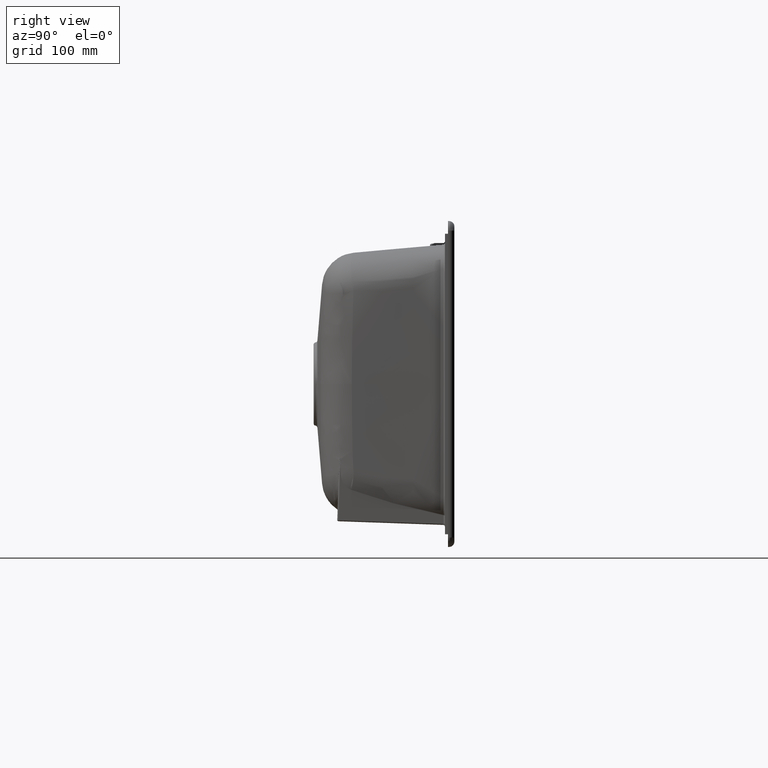
[diagram: clean part render]
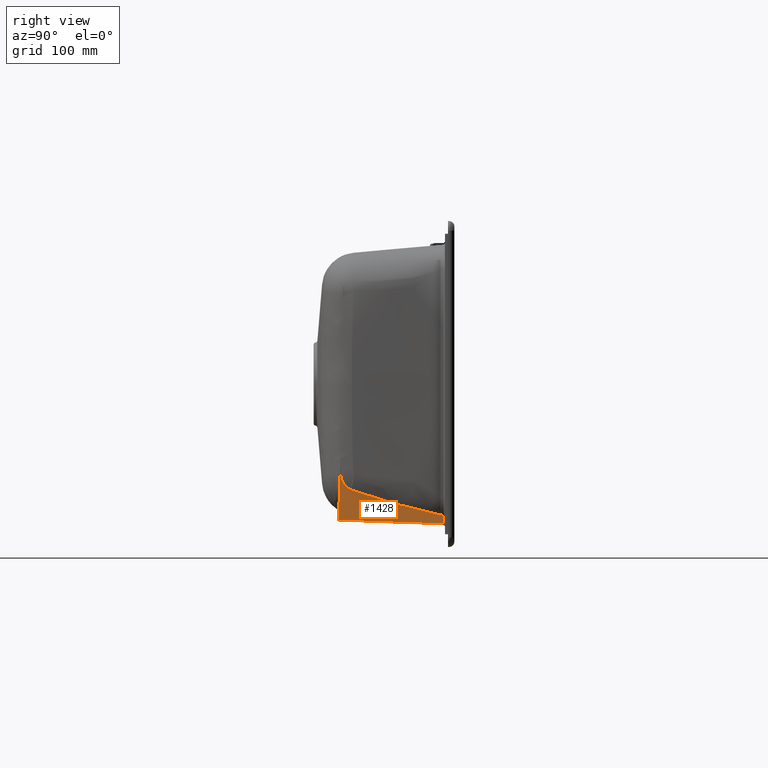
[diagram: same view with one face highlighted and labeled with its STEP entity id]
A machine part, right view. The second image highlights one B-rep face of the part: STEP entity #1428.
In plain terms, the highlighted planar face has unit normal (0.9999, -0.0143, 0.0005).
Its self-contained STEP definition (entity closure, byte-faithful):
#204=PLANE('',#7419);
#348=LINE('',#40869,#570);
#364=LINE('',#44094,#586);
#365=LINE('',#44096,#587);
#570=VECTOR('',#8125,1.);
#586=VECTOR('',#8275,1.);
#587=VECTOR('',#8276,1.);
#1428=ADVANCED_FACE('',(#1967),#204,.T.);
#1967=FACE_OUTER_BOUND('',#2440,.T.);
#2440=EDGE_LOOP('',(#4296,#4297,#4298,#4299,#4300));
#2894=B_SPLINE_CURVE_WITH_KNOTS('',3,(#40658,#40659,#40660,#40661,#40662,
#40663,#40664,#40665,#40666,#40667,#40668,#40669,#40670,#40671,#40672,#40673,
#40674,#40675,#40676,#40677,#40678,#40679,#40680,#40681,#40682,#40683,#40684,
#40685,#40686,#40687,#40688),.UNSPECIFIED.,.F.,.F.,(4,1,1,2,2,1,2,2,1,2,
2,1,2,2,1,1,2,2,4),(0.,0.0625000000000003,0.0937500000000003,0.109375,0.125,
0.187500000000001,0.218750000000001,0.250000000000001,0.312500000000001,
0.343750000000001,0.375000000000001,0.437500000000001,0.468750000000001,
0.500000000000001,0.625000000000001,0.687500000000001,0.718750000000001,
0.750000000000001,1.),.UNSPECIFIED.);
#2897=B_SPLINE_CURVE_WITH_KNOTS('',3,(#40733,#40734,#40735,#40736,#40737,
#40738,#40739,#40740,#40741,#40742,#40743,#40744,#40745,#40746,#40747,#40748,
#40749,#40750,#40751,#40752,#40753,#40754,#40755,#40756,#40757,#40758,#40759,
#40760,#40761,#40762,#40763,#40764),.UNSPECIFIED.,.F.,.F.,(4,2,2,1,1,2,
2,1,1,2,2,1,1,2,2,1,1,2,2,4),(0.,0.250000000000073,0.500000000000145,0.562500000000163,
0.593750000000173,0.609375000000176,0.62500000000018,0.656250000000186,
0.671875000000189,0.67968750000019,0.687500000000192,0.703125000000194,
0.710937500000194,0.714843750000195,0.718750000000195,0.734375000000181,
0.742187500000175,0.746093750000172,0.75000000000017,1.),.UNSPECIFIED.);
#4296=ORIENTED_EDGE('',*,*,#6596,.F.);
#4297=ORIENTED_EDGE('',*,*,#6597,.F.);
#4298=ORIENTED_EDGE('',*,*,#6469,.T.);
#4299=ORIENTED_EDGE('',*,*,#6473,.T.);
#4300=ORIENTED_EDGE('',*,*,#6475,.T.);
#5364=VERTEX_POINT('',#8863);
#5666=VERTEX_POINT('',#40689);
#5667=VERTEX_POINT('',#40690);
#5670=VERTEX_POINT('',#40870);
#5737=VERTEX_POINT('',#44095);
#6469=EDGE_CURVE('',#5666,#5667,#2894,.T.);
#6473=EDGE_CURVE('',#5667,#5364,#2897,.T.);
#6475=EDGE_CURVE('',#5364,#5670,#348,.T.);
#6596=EDGE_CURVE('',#5737,#5670,#364,.T.);
#6597=EDGE_CURVE('',#5666,#5737,#365,.T.);
#7419=AXIS2_PLACEMENT_3D('',#44097,#8277,#8278);
#8125=DIRECTION('',(9.93674816574784E-20,-0.0348994967025009,-0.999390827019096));
#8275=DIRECTION('',(-0.0143187614526946,-0.999288370750916,0.0348959188507769));
#8276=DIRECTION('',(0.000499768741346846,8.46946216291283E-22,-0.999999875115595));
#8277=DIRECTION('',(0.999897481280186,-0.0143100388500976,0.000499717568102212));
#8278=DIRECTION('',(-0.0143100406368326,-0.999897606126233,0.));
#8863=CARTESIAN_POINT('',(444.528263372893,-178.226944387536,-128.781389342571));
#40658=CARTESIAN_POINT('',(446.8669555478,-17.4970698834498,-205.628130592923));
#40659=CARTESIAN_POINT('',(446.822352311386,-20.5905221880784,-204.965273995897));
#40660=CARTESIAN_POINT('',(446.75613528513,-25.1825236329094,-203.9676730944));
#40661=CARTESIAN_POINT('',(446.680085787467,-30.4555488806835,-202.798002365557));
#40662=CARTESIAN_POINT('',(446.647751081249,-32.6973504644733,-202.295471408105));
#40663=CARTESIAN_POINT('',(446.626251929467,-34.1878701026572,-201.960174435973));
#40664=CARTESIAN_POINT('',(446.615943148079,-34.9025511200804,-201.798860475762));
#40665=CARTESIAN_POINT('',(446.560421188833,-38.7516335913139,-200.926872912435));
#40666=CARTESIAN_POINT('',(446.494422611784,-43.3264800848134,-199.875119005405));
#40667=CARTESIAN_POINT('',(446.429365695802,-47.8352478703421,-198.815311851819));
#40668=CARTESIAN_POINT('',(446.386203676495,-50.8264089033677,-198.106984139083));
#40669=CARTESIAN_POINT('',(446.365466718855,-52.2634110712536,-197.764240807917));
#40670=CARTESIAN_POINT('',(446.299133194924,-56.8598089587019,-196.659434416649));
#40671=CARTESIAN_POINT('',(446.233381290513,-61.4153135341938,-195.547373948547));
#40672=CARTESIAN_POINT('',(446.168501815382,-65.9094781417511,-194.424432365191));
#40673=CARTESIAN_POINT('',(446.125442705135,-68.8919567761371,-193.673386617342));
#40674=CARTESIAN_POINT('',(446.104680312958,-70.3299638401317,-193.308527140125));
#40675=CARTESIAN_POINT('',(446.038662588028,-74.9020385833715,-192.139087212977));
#40676=CARTESIAN_POINT('',(445.973189903787,-79.4357140343758,-190.960621085369));
#40677=CARTESIAN_POINT('',(445.908534780581,-83.9117905470269,-189.76861565707));
#40678=CARTESIAN_POINT('',(445.86561304534,-86.8830417913825,-188.97093663805));
#40679=CARTESIAN_POINT('',(445.844960391194,-88.3126149759842,-188.584140047169));
#40680=CARTESIAN_POINT('',(445.734977587443,-95.9250070441646,-186.507162405325));
#40681=CARTESIAN_POINT('',(445.604502502792,-104.952706940934,-183.955776694838));
#40682=CARTESIAN_POINT('',(445.454914060436,-115.297474963334,-180.87588808712));
#40683=CARTESIAN_POINT('',(445.391368832941,-119.690758003542,-179.533806124065));
#40684=CARTESIAN_POINT('',(445.349130704598,-122.610682481593,-178.634167103673));
#40685=CARTESIAN_POINT('',(445.32882561399,-124.014251674881,-178.198162276163));
#40686=CARTESIAN_POINT('',(445.133120589216,-137.540882329566,-173.959065432408));
#40687=CARTESIAN_POINT('',(444.962919666778,-149.295584477742,-170.010376471308));
#40688=CARTESIAN_POINT('',(444.796477843925,-160.781317081041,-165.881084632446));
#40689=CARTESIAN_POINT('',(446.8669555478,-17.4970698834456,-205.628130592924));
#40690=CARTESIAN_POINT('',(444.796477838644,-160.781317447143,-165.881084500844));
#40733=CARTESIAN_POINT('',(444.796477843926,-160.781317081011,-165.881084632362));
#40734=CARTESIAN_POINT('',(444.746295338425,-164.24428550828,-164.636085130139));
#40735=CARTESIAN_POINT('',(444.699836098064,-167.417451788591,-162.54221303711));
#40736=CARTESIAN_POINT('',(444.623972738102,-172.535968382539,-157.320440981422));
#40737=CARTESIAN_POINT('',(444.593448513385,-174.556888443386,-154.115328870557));
#40738=CARTESIAN_POINT('',(444.568107351133,-176.177656836007,-149.822292605384));
#40739=CARTESIAN_POINT('',(444.56141285433,-176.599679276951,-148.512246674928));
#40740=CARTESIAN_POINT('',(444.555191348836,-176.979674656914,-146.945123416982));
#40741=CARTESIAN_POINT('',(444.55286543379,-177.118451790939,-146.265198519488));
#40742=CARTESIAN_POINT('',(444.551390478083,-177.205619207219,-145.810070666917));
#40743=CARTESIAN_POINT('',(444.550609062767,-177.25125105806,-145.553242298494));
#40744=CARTESIAN_POINT('',(444.548868886043,-177.351779725562,-144.950043201959));
#40745=CARTESIAN_POINT('',(444.547266456377,-177.441201024524,-144.304392248089));
#40746=CARTESIAN_POINT('',(444.545638012452,-177.52608797837,-143.476842051573));
#40747=CARTESIAN_POINT('',(444.54499176306,-177.558302838245,-143.106258235137));
#40748=CARTESIAN_POINT('',(444.544572409053,-177.57885379745,-142.855664702735));
#40749=CARTESIAN_POINT('',(444.544323810227,-177.590773337021,-142.699567997717));
#40750=CARTESIAN_POINT('',(444.543863199832,-177.612502332721,-142.400158069066));
#40751=CARTESIAN_POINT('',(444.543397385066,-177.633796324426,-142.077877700437));
#40752=CARTESIAN_POINT('',(444.542844826859,-177.657878057759,-141.661860667075));
#40753=CARTESIAN_POINT('',(444.54260606456,-177.668035674118,-141.474991237786));
#40754=CARTESIAN_POINT('',(444.542446455996,-177.674771168024,-141.348505748261));
#40755=CARTESIAN_POINT('',(444.542313518599,-177.680317883567,-141.241345109789));
#40756=CARTESIAN_POINT('',(444.542176910036,-177.685989897886,-141.13042682954));
#40757=CARTESIAN_POINT('',(444.541891353995,-177.697587631011,-140.891166172739));
#40758=CARTESIAN_POINT('',(444.541345360195,-177.719503122555,-140.426250978925));
#40759=CARTESIAN_POINT('',(444.541065753191,-177.730692219551,-140.187192089959));
#40760=CARTESIAN_POINT('',(444.540869213041,-177.738550893878,-140.018972937273));
#40761=CARTESIAN_POINT('',(444.540720899077,-177.744475758412,-139.891873708016));
#40762=CARTESIAN_POINT('',(444.53659798769,-177.909102836937,-136.356539081025));
#40763=CARTESIAN_POINT('',(444.532466622097,-178.069081471883,-132.671174213707));
#40764=CARTESIAN_POINT('',(444.528263372893,-178.226944387536,-128.781389342571));
#40869=CARTESIAN_POINT('',(444.528263372893,-177.735618373545,-114.711653161435));
#40870=CARTESIAN_POINT('',(444.528263372893,-181.15576905039,-212.651954209306));
#44094=CARTESIAN_POINT('',(446.916693936367,-14.470201006595,-218.472742508564));
#44095=CARTESIAN_POINT('',(446.873322058274,-17.4970698834497,-218.367041918234));
#44096=CARTESIAN_POINT('',(446.867270825297,-17.4970698834497,-206.258977285967));
#44097=CARTESIAN_POINT('',(446.999968592056,-5.23841674098788,-120.735388177617));